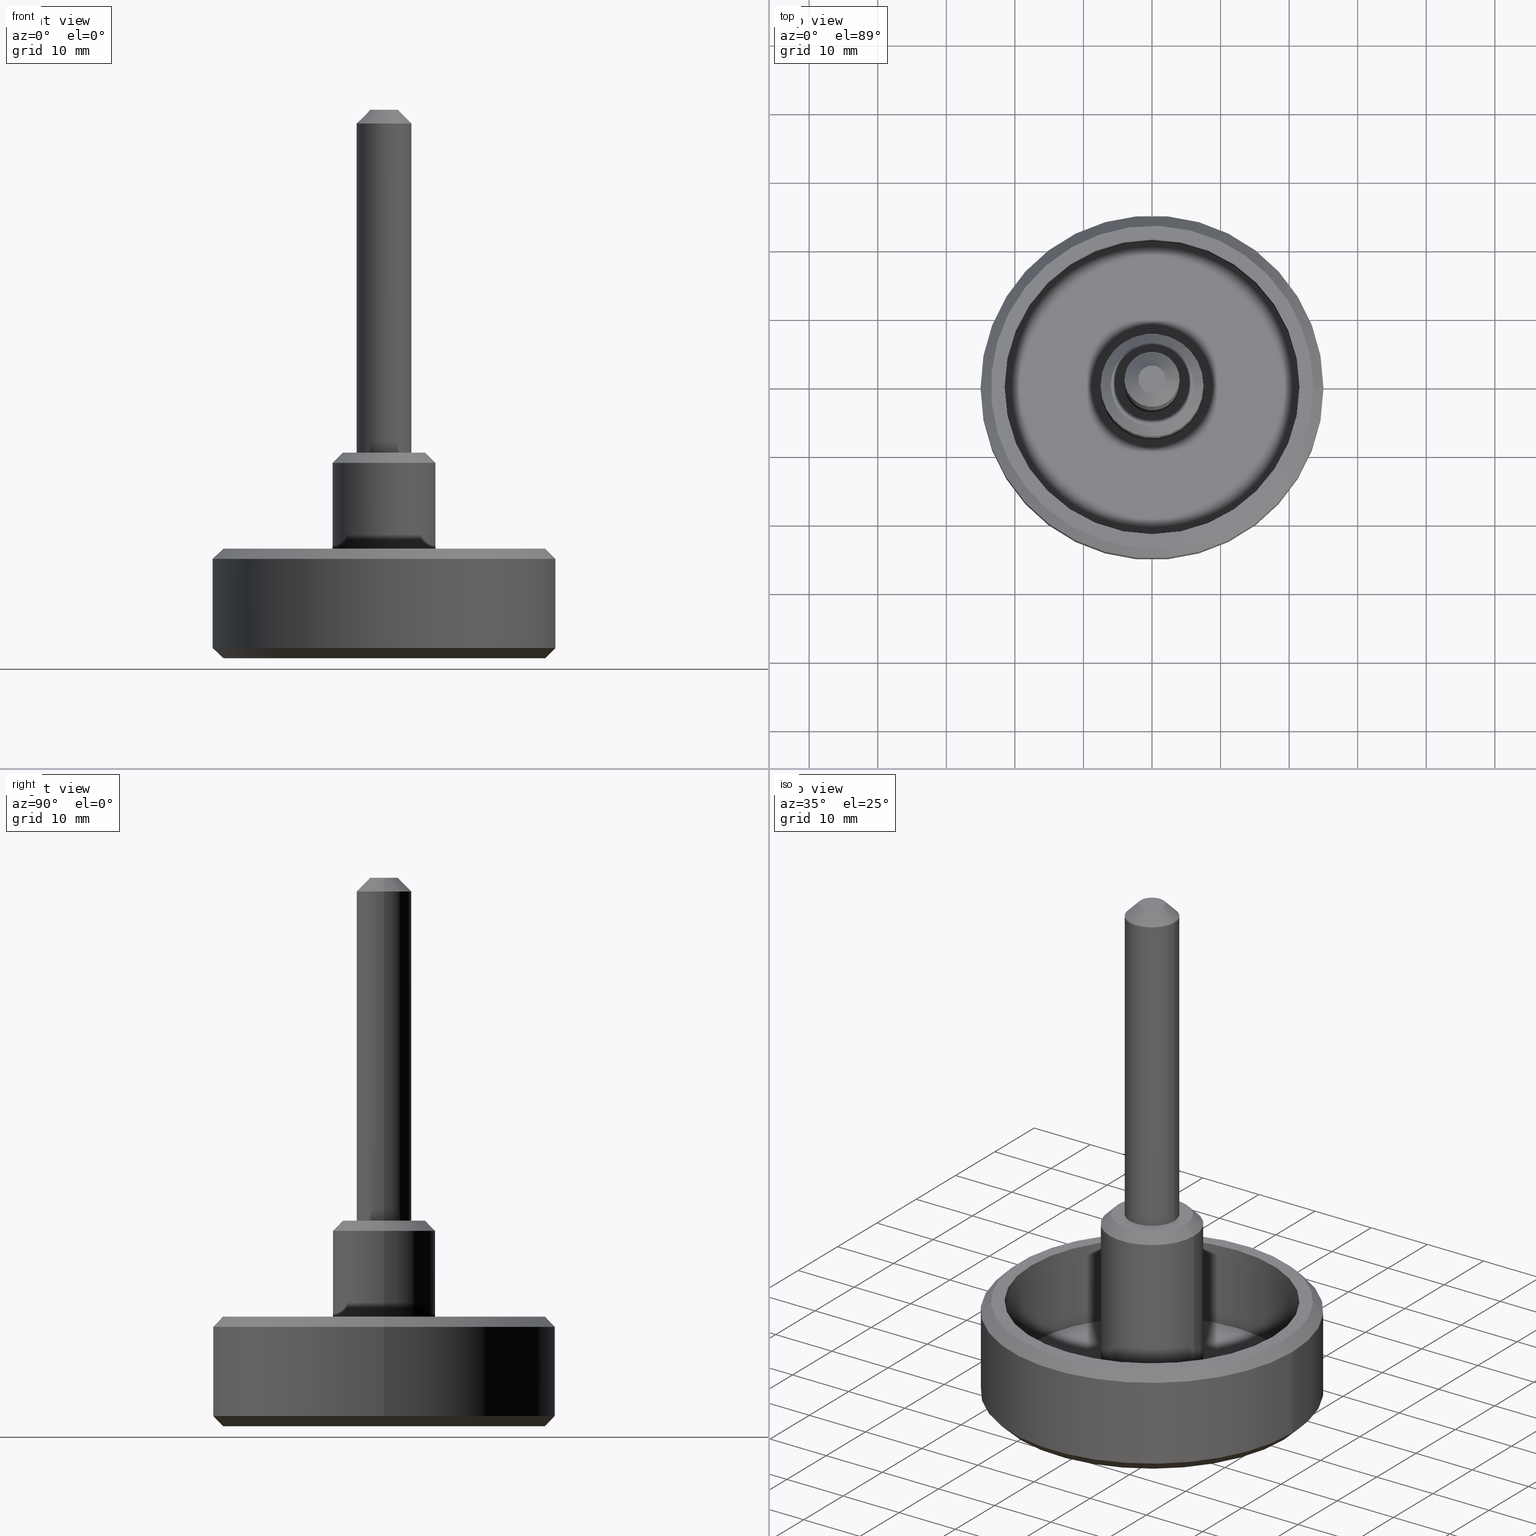
[diagram: canonical four-view strip — front | top / right | iso, engineering-drawing reading convention]
A machine part, canonical four-view strip (front | top / right | iso — engineering-drawing reading convention). The complete STEP part file that produces these views, byte-faithful:
ISO-10303-21;
HEADER;
/* Generated by software containing ST-Developer
 * from STEP Tools, Inc. (www.steptools.com) 
 */

FILE_DESCRIPTION(
/* description */ ('VOLANTINO MBT.50 P-M8 X 50'),
/* implementation_level */ '2;1');

FILE_NAME(
/* name */ 
'Q:\\Catalogo\\2_Accessori Dierre\\Per Download Web e catalogo cartace
o\\CATALOGO ACCESSORI PER RIPARI\\PAGINA 67\\CVOMN0000001.stp',
/* time_stamp */ '2018-11-08T16:44:42+01:00',
/* author */ ('fzagni'),
/* organization */ (''),
/* preprocessor_version */ 'ST-DEVELOPER v16.1',
/* originating_system */ 'Autodesk Inventor 2016',
/* authorisation */ '');

FILE_SCHEMA (('AUTOMOTIVE_DESIGN { 1 0 10303 214 3 1 1 }'));
ENDSEC;

DATA;
#10=MECHANICAL_DESIGN_GEOMETRIC_PRESENTATION_REPRESENTATION('',(#13),#329);
#11=SHAPE_REPRESENTATION_RELATIONSHIP('SRR','None',#338,#12);
#12=ADVANCED_BREP_SHAPE_REPRESENTATION('',(#14),#328);
#13=STYLED_ITEM('',(#347),#14);
#14=MANIFOLD_SOLID_BREP('Solido1',#182);
#15=PLANE('',#189);
#16=PLANE('',#191);
#17=PLANE('',#195);
#18=PLANE('',#202);
#19=PLANE('',#207);
#20=PLANE('',#214);
#21=CYLINDRICAL_SURFACE('',#187,7.5);
#22=CYLINDRICAL_SURFACE('',#192,21.5);
#23=CYLINDRICAL_SURFACE('',#200,4.);
#24=CYLINDRICAL_SURFACE('',#206,7.5);
#25=CYLINDRICAL_SURFACE('',#210,25.);
#26=FACE_BOUND('',#57,.T.);
#27=FACE_BOUND('',#59,.T.);
#28=FACE_BOUND('',#61,.T.);
#29=FACE_BOUND('',#64,.T.);
#30=FACE_BOUND('',#66,.T.);
#31=FACE_BOUND('',#68,.T.);
#32=FACE_BOUND('',#70,.T.);
#33=FACE_BOUND('',#73,.T.);
#34=FACE_BOUND('',#75,.T.);
#35=FACE_BOUND('',#77,.T.);
#36=FACE_BOUND('',#79,.T.);
#37=FACE_BOUND('',#81,.T.);
#38=FACE_BOUND('',#83,.T.);
#39=FACE_BOUND('',#85,.T.);
#40=FACE_OUTER_BOUND('',#56,.T.);
#41=FACE_OUTER_BOUND('',#58,.T.);
#42=FACE_OUTER_BOUND('',#60,.T.);
#43=FACE_OUTER_BOUND('',#62,.T.);
#44=FACE_OUTER_BOUND('',#63,.T.);
#45=FACE_OUTER_BOUND('',#65,.T.);
#46=FACE_OUTER_BOUND('',#67,.T.);
#47=FACE_OUTER_BOUND('',#69,.T.);
#48=FACE_OUTER_BOUND('',#71,.T.);
#49=FACE_OUTER_BOUND('',#72,.T.);
#50=FACE_OUTER_BOUND('',#74,.T.);
#51=FACE_OUTER_BOUND('',#76,.T.);
#52=FACE_OUTER_BOUND('',#78,.T.);
#53=FACE_OUTER_BOUND('',#80,.T.);
#54=FACE_OUTER_BOUND('',#82,.T.);
#55=FACE_OUTER_BOUND('',#84,.T.);
#56=EDGE_LOOP('',(#131));
#57=EDGE_LOOP('',(#132));
#58=EDGE_LOOP('',(#133));
#59=EDGE_LOOP('',(#134));
#60=EDGE_LOOP('',(#135));
#61=EDGE_LOOP('',(#136));
#62=EDGE_LOOP('',(#137));
#63=EDGE_LOOP('',(#138));
#64=EDGE_LOOP('',(#139));
#65=EDGE_LOOP('',(#140));
#66=EDGE_LOOP('',(#141));
#67=EDGE_LOOP('',(#142));
#68=EDGE_LOOP('',(#143));
#69=EDGE_LOOP('',(#144));
#70=EDGE_LOOP('',(#145));
#71=EDGE_LOOP('',(#146));
#72=EDGE_LOOP('',(#147));
#73=EDGE_LOOP('',(#148));
#74=EDGE_LOOP('',(#149));
#75=EDGE_LOOP('',(#150));
#76=EDGE_LOOP('',(#151));
#77=EDGE_LOOP('',(#152));
#78=EDGE_LOOP('',(#153));
#79=EDGE_LOOP('',(#154));
#80=EDGE_LOOP('',(#155));
#81=EDGE_LOOP('',(#156));
#82=EDGE_LOOP('',(#157));
#83=EDGE_LOOP('',(#158));
#84=EDGE_LOOP('',(#159));
#85=EDGE_LOOP('',(#160));
#86=CIRCLE('',#185,7.5);
#87=CIRCLE('',#186,8.5);
#88=CIRCLE('',#188,7.5);
#89=CIRCLE('',#190,23.5);
#90=CIRCLE('',#193,21.5);
#91=CIRCLE('',#194,21.5);
#92=CIRCLE('',#196,7.5);
#93=CIRCLE('',#198,4.);
#94=CIRCLE('',#199,2.);
#95=CIRCLE('',#201,4.);
#96=CIRCLE('',#204,7.5);
#97=CIRCLE('',#205,6.);
#98=CIRCLE('',#209,25.);
#99=CIRCLE('',#211,25.);
#100=CIRCLE('',#213,23.5);
#101=VERTEX_POINT('',#281);
#102=VERTEX_POINT('',#283);
#103=VERTEX_POINT('',#286);
#104=VERTEX_POINT('',#289);
#105=VERTEX_POINT('',#293);
#106=VERTEX_POINT('',#295);
#107=VERTEX_POINT('',#298);
#108=VERTEX_POINT('',#301);
#109=VERTEX_POINT('',#303);
#110=VERTEX_POINT('',#306);
#111=VERTEX_POINT('',#310);
#112=VERTEX_POINT('',#312);
#113=VERTEX_POINT('',#317);
#114=VERTEX_POINT('',#320);
#115=VERTEX_POINT('',#323);
#116=EDGE_CURVE('',#101,#101,#86,.T.);
#117=EDGE_CURVE('',#102,#102,#87,.T.);
#118=EDGE_CURVE('',#103,#103,#88,.T.);
#119=EDGE_CURVE('',#104,#104,#89,.T.);
#120=EDGE_CURVE('',#105,#105,#90,.T.);
#121=EDGE_CURVE('',#106,#106,#91,.T.);
#122=EDGE_CURVE('',#107,#107,#92,.T.);
#123=EDGE_CURVE('',#108,#108,#93,.T.);
#124=EDGE_CURVE('',#109,#109,#94,.T.);
#125=EDGE_CURVE('',#110,#110,#95,.T.);
#126=EDGE_CURVE('',#111,#111,#96,.T.);
#127=EDGE_CURVE('',#112,#112,#97,.T.);
#128=EDGE_CURVE('',#113,#113,#98,.T.);
#129=EDGE_CURVE('',#114,#114,#99,.T.);
#130=EDGE_CURVE('',#115,#115,#100,.T.);
#131=ORIENTED_EDGE('',*,*,#116,.T.);
#132=ORIENTED_EDGE('',*,*,#117,.T.);
#133=ORIENTED_EDGE('',*,*,#118,.T.);
#134=ORIENTED_EDGE('',*,*,#116,.F.);
#135=ORIENTED_EDGE('',*,*,#119,.F.);
#136=ORIENTED_EDGE('',*,*,#117,.F.);
#137=ORIENTED_EDGE('',*,*,#118,.F.);
#138=ORIENTED_EDGE('',*,*,#120,.T.);
#139=ORIENTED_EDGE('',*,*,#121,.F.);
#140=ORIENTED_EDGE('',*,*,#120,.F.);
#141=ORIENTED_EDGE('',*,*,#122,.F.);
#142=ORIENTED_EDGE('',*,*,#123,.T.);
#143=ORIENTED_EDGE('',*,*,#124,.T.);
#144=ORIENTED_EDGE('',*,*,#125,.F.);
#145=ORIENTED_EDGE('',*,*,#123,.F.);
#146=ORIENTED_EDGE('',*,*,#124,.F.);
#147=ORIENTED_EDGE('',*,*,#126,.T.);
#148=ORIENTED_EDGE('',*,*,#127,.T.);
#149=ORIENTED_EDGE('',*,*,#122,.T.);
#150=ORIENTED_EDGE('',*,*,#126,.F.);
#151=ORIENTED_EDGE('',*,*,#127,.F.);
#152=ORIENTED_EDGE('',*,*,#125,.T.);
#153=ORIENTED_EDGE('',*,*,#128,.T.);
#154=ORIENTED_EDGE('',*,*,#119,.T.);
#155=ORIENTED_EDGE('',*,*,#129,.F.);
#156=ORIENTED_EDGE('',*,*,#128,.F.);
#157=ORIENTED_EDGE('',*,*,#129,.T.);
#158=ORIENTED_EDGE('',*,*,#130,.T.);
#159=ORIENTED_EDGE('',*,*,#130,.F.);
#160=ORIENTED_EDGE('',*,*,#121,.T.);
#161=CONICAL_SURFACE('',#184,8.,45.);
#162=CONICAL_SURFACE('',#197,3.,45.);
#163=CONICAL_SURFACE('',#203,6.75,45.);
#164=CONICAL_SURFACE('',#208,24.25,45.);
#165=CONICAL_SURFACE('',#212,24.25,45.);
#166=ADVANCED_FACE('',(#40,#26),#161,.F.);
#167=ADVANCED_FACE('',(#41,#27),#21,.F.);
#168=ADVANCED_FACE('',(#42,#28),#15,.F.);
#169=ADVANCED_FACE('',(#43),#16,.F.);
#170=ADVANCED_FACE('',(#44,#29),#22,.F.);
#171=ADVANCED_FACE('',(#45,#30),#17,.T.);
#172=ADVANCED_FACE('',(#46,#31),#162,.T.);
#173=ADVANCED_FACE('',(#47,#32),#23,.T.);
#174=ADVANCED_FACE('',(#48),#18,.T.);
#175=ADVANCED_FACE('',(#49,#33),#163,.T.);
#176=ADVANCED_FACE('',(#50,#34),#24,.T.);
#177=ADVANCED_FACE('',(#51,#35),#19,.T.);
#178=ADVANCED_FACE('',(#52,#36),#164,.T.);
#179=ADVANCED_FACE('',(#53,#37),#25,.T.);
#180=ADVANCED_FACE('',(#54,#38),#165,.T.);
#181=ADVANCED_FACE('',(#55,#39),#20,.T.);
#182=CLOSED_SHELL('',(#166,#167,#168,#169,#170,#171,#172,#173,#174,#175,
#176,#177,#178,#179,#180,#181));
#183=AXIS2_PLACEMENT_3D('placement',#279,#215,#216);
#184=AXIS2_PLACEMENT_3D('',#280,#217,#218);
#185=AXIS2_PLACEMENT_3D('',#282,#219,#220);
#186=AXIS2_PLACEMENT_3D('',#284,#221,#222);
#187=AXIS2_PLACEMENT_3D('',#285,#223,#224);
#188=AXIS2_PLACEMENT_3D('',#287,#225,#226);
#189=AXIS2_PLACEMENT_3D('',#288,#227,#228);
#190=AXIS2_PLACEMENT_3D('',#290,#229,#230);
#191=AXIS2_PLACEMENT_3D('',#291,#231,#232);
#192=AXIS2_PLACEMENT_3D('',#292,#233,#234);
#193=AXIS2_PLACEMENT_3D('',#294,#235,#236);
#194=AXIS2_PLACEMENT_3D('',#296,#237,#238);
#195=AXIS2_PLACEMENT_3D('',#297,#239,#240);
#196=AXIS2_PLACEMENT_3D('',#299,#241,#242);
#197=AXIS2_PLACEMENT_3D('',#300,#243,#244);
#198=AXIS2_PLACEMENT_3D('',#302,#245,#246);
#199=AXIS2_PLACEMENT_3D('',#304,#247,#248);
#200=AXIS2_PLACEMENT_3D('',#305,#249,#250);
#201=AXIS2_PLACEMENT_3D('',#307,#251,#252);
#202=AXIS2_PLACEMENT_3D('',#308,#253,#254);
#203=AXIS2_PLACEMENT_3D('',#309,#255,#256);
#204=AXIS2_PLACEMENT_3D('',#311,#257,#258);
#205=AXIS2_PLACEMENT_3D('',#313,#259,#260);
#206=AXIS2_PLACEMENT_3D('',#314,#261,#262);
#207=AXIS2_PLACEMENT_3D('',#315,#263,#264);
#208=AXIS2_PLACEMENT_3D('',#316,#265,#266);
#209=AXIS2_PLACEMENT_3D('',#318,#267,#268);
#210=AXIS2_PLACEMENT_3D('',#319,#269,#270);
#211=AXIS2_PLACEMENT_3D('',#321,#271,#272);
#212=AXIS2_PLACEMENT_3D('',#322,#273,#274);
#213=AXIS2_PLACEMENT_3D('',#324,#275,#276);
#214=AXIS2_PLACEMENT_3D('',#325,#277,#278);
#215=DIRECTION('axis',(0.,0.,1.));
#216=DIRECTION('refdir',(1.,0.,0.));
#217=DIRECTION('center_axis',(0.,0.,-1.));
#218=DIRECTION('ref_axis',(1.,0.,0.));
#219=DIRECTION('center_axis',(0.,0.,1.));
#220=DIRECTION('ref_axis',(1.,0.,0.));
#221=DIRECTION('center_axis',(0.,0.,-1.));
#222=DIRECTION('ref_axis',(1.,0.,0.));
#223=DIRECTION('center_axis',(0.,0.,1.));
#224=DIRECTION('ref_axis',(1.,0.,0.));
#225=DIRECTION('center_axis',(0.,0.,1.));
#226=DIRECTION('ref_axis',(1.,0.,0.));
#227=DIRECTION('center_axis',(0.,0.,1.));
#228=DIRECTION('ref_axis',(1.,0.,0.));
#229=DIRECTION('center_axis',(0.,0.,1.));
#230=DIRECTION('ref_axis',(-1.,0.,0.));
#231=DIRECTION('center_axis',(0.,0.,1.));
#232=DIRECTION('ref_axis',(1.,0.,0.));
#233=DIRECTION('center_axis',(0.,0.,-1.));
#234=DIRECTION('ref_axis',(-1.,0.,0.));
#235=DIRECTION('center_axis',(0.,0.,-1.));
#236=DIRECTION('ref_axis',(-1.,0.,0.));
#237=DIRECTION('center_axis',(0.,0.,-1.));
#238=DIRECTION('ref_axis',(-1.,0.,0.));
#239=DIRECTION('center_axis',(0.,0.,1.));
#240=DIRECTION('ref_axis',(1.,0.,0.));
#241=DIRECTION('center_axis',(0.,0.,1.));
#242=DIRECTION('ref_axis',(-1.,0.,0.));
#243=DIRECTION('center_axis',(0.,0.,-1.));
#244=DIRECTION('ref_axis',(-1.,0.,0.));
#245=DIRECTION('center_axis',(0.,0.,1.));
#246=DIRECTION('ref_axis',(-1.,0.,0.));
#247=DIRECTION('center_axis',(0.,0.,-1.));
#248=DIRECTION('ref_axis',(-1.,0.,0.));
#249=DIRECTION('center_axis',(0.,0.,1.));
#250=DIRECTION('ref_axis',(-1.,0.,0.));
#251=DIRECTION('center_axis',(0.,0.,-1.));
#252=DIRECTION('ref_axis',(-1.,0.,0.));
#253=DIRECTION('center_axis',(0.,0.,1.));
#254=DIRECTION('ref_axis',(1.,0.,0.));
#255=DIRECTION('center_axis',(0.,0.,-1.));
#256=DIRECTION('ref_axis',(-1.,0.,0.));
#257=DIRECTION('center_axis',(0.,0.,1.));
#258=DIRECTION('ref_axis',(-1.,0.,0.));
#259=DIRECTION('center_axis',(0.,0.,-1.));
#260=DIRECTION('ref_axis',(-1.,0.,0.));
#261=DIRECTION('center_axis',(0.,0.,1.));
#262=DIRECTION('ref_axis',(-1.,0.,0.));
#263=DIRECTION('center_axis',(0.,0.,1.));
#264=DIRECTION('ref_axis',(1.,0.,0.));
#265=DIRECTION('center_axis',(0.,0.,1.));
#266=DIRECTION('ref_axis',(-1.,0.,0.));
#267=DIRECTION('center_axis',(0.,0.,-1.));
#268=DIRECTION('ref_axis',(-1.,0.,0.));
#269=DIRECTION('center_axis',(0.,0.,1.));
#270=DIRECTION('ref_axis',(-1.,0.,0.));
#271=DIRECTION('center_axis',(0.,0.,1.));
#272=DIRECTION('ref_axis',(-1.,0.,0.));
#273=DIRECTION('center_axis',(0.,0.,-1.));
#274=DIRECTION('ref_axis',(-1.,0.,0.));
#275=DIRECTION('center_axis',(0.,0.,-1.));
#276=DIRECTION('ref_axis',(-1.,0.,0.));
#277=DIRECTION('center_axis',(0.,0.,1.));
#278=DIRECTION('ref_axis',(1.,0.,0.));
#279=CARTESIAN_POINT('',(0.,0.,0.));
#280=CARTESIAN_POINT('Origin',(0.,0.,0.5));
#281=CARTESIAN_POINT('',(-7.5,-9.18485099360515E-16,1.));
#282=CARTESIAN_POINT('Origin',(0.,0.,1.));
#283=CARTESIAN_POINT('',(-8.5,1.04094977927525E-15,0.));
#284=CARTESIAN_POINT('Origin',(0.,0.,0.));
#285=CARTESIAN_POINT('Origin',(0.,0.,0.));
#286=CARTESIAN_POINT('',(-7.5,9.18485099360515E-16,1.5));
#287=CARTESIAN_POINT('Origin',(0.,0.,1.5));
#288=CARTESIAN_POINT('Origin',(-1.43937264275587E-15,-5.9211894646675E-16,
0.));
#289=CARTESIAN_POINT('',(23.5,2.87791997799628E-15,0.));
#290=CARTESIAN_POINT('Origin',(0.,0.,0.));
#291=CARTESIAN_POINT('Origin',(3.23256652641189E-16,1.2335811384724E-16,
1.5));
#292=CARTESIAN_POINT('Origin',(0.,0.,16.));
#293=CARTESIAN_POINT('',(21.5,2.63299061816681E-15,3.5));
#294=CARTESIAN_POINT('Origin',(0.,0.,3.5));
#295=CARTESIAN_POINT('',(21.5,2.63299061816681E-15,16.));
#296=CARTESIAN_POINT('Origin',(0.,0.,16.));
#297=CARTESIAN_POINT('Origin',(-9.07926287715548E-16,-3.44255201434157E-16,
3.5));
#298=CARTESIAN_POINT('',(7.5,9.18485099360515E-16,3.5));
#299=CARTESIAN_POINT('Origin',(0.,0.,3.5));
#300=CARTESIAN_POINT('Origin',(0.,0.,79.));
#301=CARTESIAN_POINT('',(4.,4.89858719658941E-16,78.));
#302=CARTESIAN_POINT('Origin',(0.,0.,78.));
#303=CARTESIAN_POINT('',(2.,-2.44929359829471E-16,80.));
#304=CARTESIAN_POINT('Origin',(0.,0.,80.));
#305=CARTESIAN_POINT('Origin',(0.,0.,30.));
#306=CARTESIAN_POINT('',(4.,4.89858719658941E-16,30.));
#307=CARTESIAN_POINT('Origin',(0.,0.,30.));
#308=CARTESIAN_POINT('Origin',(-2.72118023435153E-16,0.,80.));
#309=CARTESIAN_POINT('Origin',(0.,0.,29.25));
#310=CARTESIAN_POINT('',(7.5,9.18485099360515E-16,28.5));
#311=CARTESIAN_POINT('Origin',(0.,0.,28.5));
#312=CARTESIAN_POINT('',(6.,-7.34788079488412E-16,30.));
#313=CARTESIAN_POINT('Origin',(0.,0.,30.));
#314=CARTESIAN_POINT('Origin',(0.,0.,16.));
#315=CARTESIAN_POINT('Origin',(-3.23256652641189E-16,1.2335811384724E-16,
30.));
#316=CARTESIAN_POINT('Origin',(0.,0.,0.75));
#317=CARTESIAN_POINT('',(25.,-3.06161699786838E-15,1.5));
#318=CARTESIAN_POINT('Origin',(0.,0.,1.5));
#319=CARTESIAN_POINT('Origin',(0.,0.,0.));
#320=CARTESIAN_POINT('',(25.,3.06161699786838E-15,14.5));
#321=CARTESIAN_POINT('Origin',(0.,0.,14.5));
#322=CARTESIAN_POINT('Origin',(0.,0.,15.25));
#323=CARTESIAN_POINT('',(23.5,-2.87791997799628E-15,16.));
#324=CARTESIAN_POINT('Origin',(0.,0.,16.));
#325=CARTESIAN_POINT('Origin',(-1.43937264275587E-15,-5.9211894646675E-16,
16.));
#326=UNCERTAINTY_MEASURE_WITH_UNIT(LENGTH_MEASURE(0.01),#330,
'DISTANCE_ACCURACY_VALUE',
'Maximum model space distance between geometric entities at asserted c
onnectivities');
#327=UNCERTAINTY_MEASURE_WITH_UNIT(LENGTH_MEASURE(1.E-6),#330,
'DISTANCE_ACCURACY_VALUE',
'Maximum model space distance between geometric entities at asserted c
onnectivities');
#328=(
GEOMETRIC_REPRESENTATION_CONTEXT(3)
GLOBAL_UNCERTAINTY_ASSIGNED_CONTEXT((#326))
GLOBAL_UNIT_ASSIGNED_CONTEXT((#330,#333,#331))
REPRESENTATION_CONTEXT('','3D')
);
#329=(
GEOMETRIC_REPRESENTATION_CONTEXT(3)
GLOBAL_UNCERTAINTY_ASSIGNED_CONTEXT((#327))
GLOBAL_UNIT_ASSIGNED_CONTEXT((#330,#333,#331))
REPRESENTATION_CONTEXT('','3D')
);
#330=(
LENGTH_UNIT()
NAMED_UNIT(*)
SI_UNIT(.MILLI.,.METRE.)
);
#331=(
NAMED_UNIT(*)
SI_UNIT($,.STERADIAN.)
SOLID_ANGLE_UNIT()
);
#332=DIMENSIONAL_EXPONENTS(0.,0.,0.,0.,0.,0.,0.);
#333=(
CONVERSION_BASED_UNIT('degree',#335)
NAMED_UNIT(#332)
PLANE_ANGLE_UNIT()
);
#334=(
NAMED_UNIT(*)
PLANE_ANGLE_UNIT()
SI_UNIT($,.RADIAN.)
);
#335=PLANE_ANGLE_MEASURE_WITH_UNIT(PLANE_ANGLE_MEASURE(0.01745329252),#334);
#336=SHAPE_DEFINITION_REPRESENTATION(#337,#338);
#337=PRODUCT_DEFINITION_SHAPE('',$,#340);
#338=SHAPE_REPRESENTATION('',(#183),#328);
#339=PRODUCT_DEFINITION_CONTEXT('part definition',#344,'design');
#340=PRODUCT_DEFINITION('80VO00004','80VO00004',#341,#339);
#341=PRODUCT_DEFINITION_FORMATION('','A',#346);
#342=PRODUCT_RELATED_PRODUCT_CATEGORY('80VO00004','80VO00004',(#346));
#343=APPLICATION_PROTOCOL_DEFINITION('international standard',
'automotive_design',2009,#344);
#344=APPLICATION_CONTEXT(
'Core Data for Automotive Mechanical Design Process');
#345=PRODUCT_CONTEXT('part definition',#344,'mechanical');
#346=PRODUCT('80VO00004','80VO00004',$,(#345));
#347=PRESENTATION_STYLE_ASSIGNMENT((#348));
#348=SURFACE_STYLE_USAGE(.BOTH.,#349);
#349=SURFACE_SIDE_STYLE('',(#350));
#350=SURFACE_STYLE_FILL_AREA(#351);
#351=FILL_AREA_STYLE('',(#352));
#352=FILL_AREA_STYLE_COLOUR('',#353);
#353=COLOUR_RGB('',0.16078431372549,0.16078431372549,0.16078431372549);
ENDSEC;
END-ISO-10303-21;
